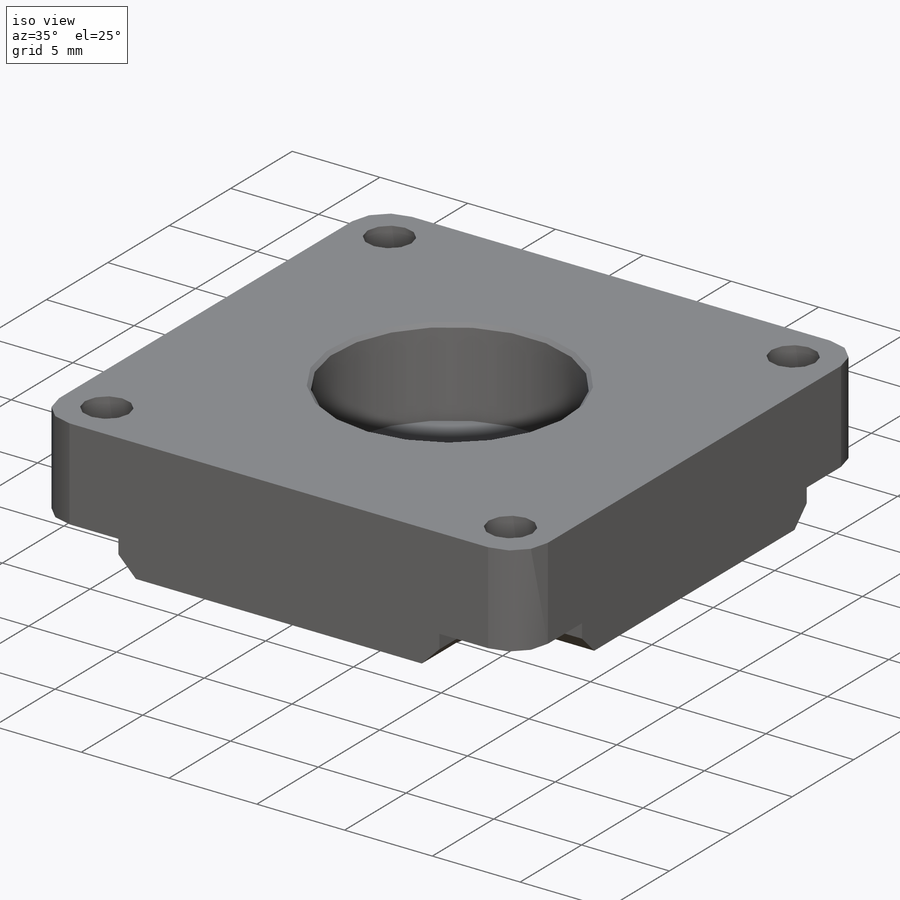
[diagram: iso view]
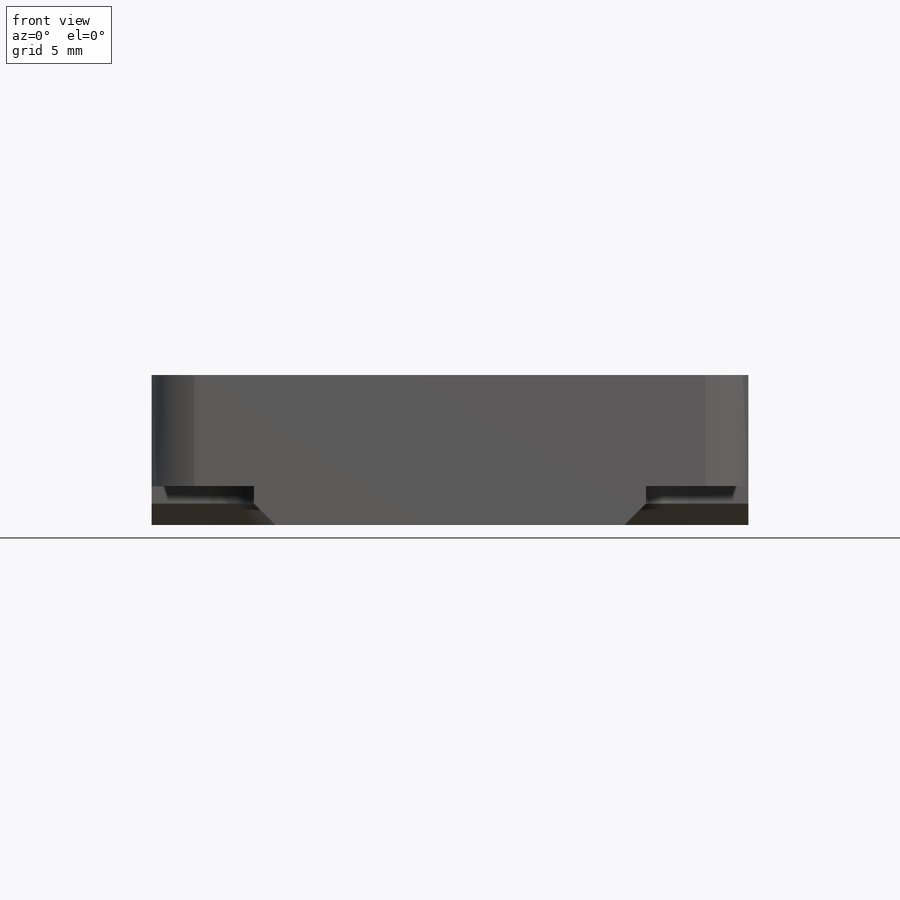
[diagram: front view]
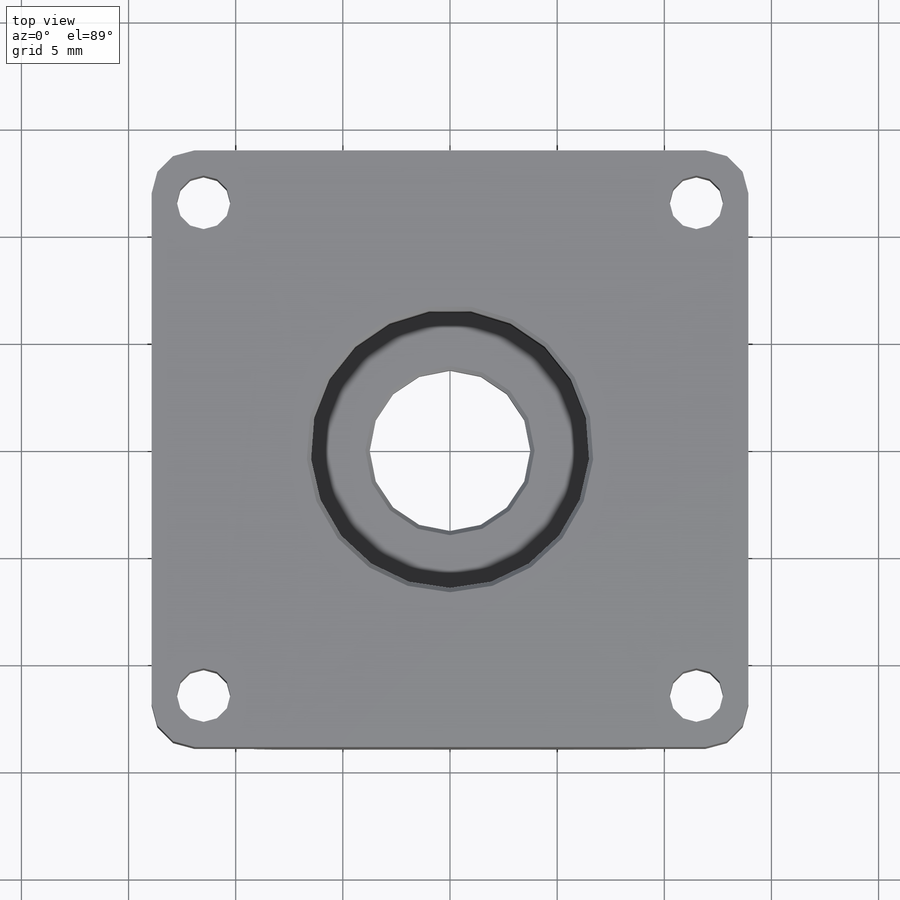
[diagram: top view]
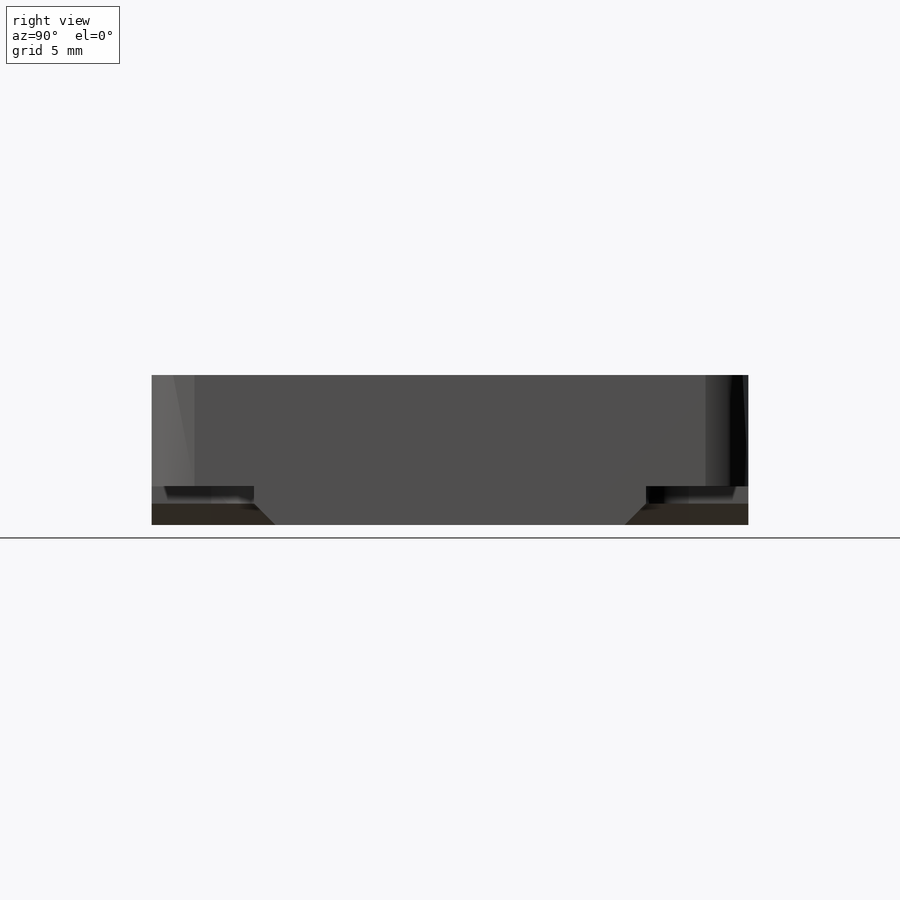
[diagram: right view]
SOLIDWORKS PART (.sldprt)
format: sldprt  version: not decoded by parser v0  size: 361,984 bytes
history: native  units: mm
features: plane x3, sketch x3, cut_extrude x2, chamfer x2, material x1, extrude x1, fillet x1 (+9 scaffold rows collapsed)
feature tree (22):
  scaffold x9  (default folders/planes/origin — collapsed)
  material  "Материал <не указан>"
  plane  "Спереди"
  plane  "Сверху"
  plane  "Справа"
  sketch  "Эскиз1"  dims[c1.D1=5.0mm c1.D2=3.0mm c2.D1=6.3mm c2.D4=7.5mm c2.D2=2.0mm c2.D5=2.425mm c3.D1=41.7mm c3.D2=41.7mm c4.D2=42.0mm c4.D1=31.0mm c4.D3=31.0mm c5.D1=30.0mm c5.D3=31.0mm c5.D4=31.0mm c5.D2=30.0mm c6.D3=23.0mm c6.D1=27.85mm c6.D2=~4.780125mm c6.D5=27.85mm]
  extrude  "Бобышка-Вытянуть1"  Depth=7mm
  cut_extrude  "Вырез-Вытянуть1"  [1 undecoded]
  sketch  "Эскиз1<4>"  dims[D1=1.8mm]
  chamfer  "Фаска1"  Distance=1mm Angle=45deg
  fillet  "Скругление1"  Radius=2mm
  sketch  "Эскиз3"  dims[D1=13.0mm]
  cut_extrude  "Вырез-Вытянуть2"  Depth=5mm
  chamfer  "Фаска2"  Distance=0.2mm Angle=45deg
decode coverage: 8 of 9 modeling features carry decoded parameters
note: ~ marks probable driven/reference dimensions
note: 1 parameter value undecoded
note: suppression state not decoded; provenance and decode notes live in map.json
